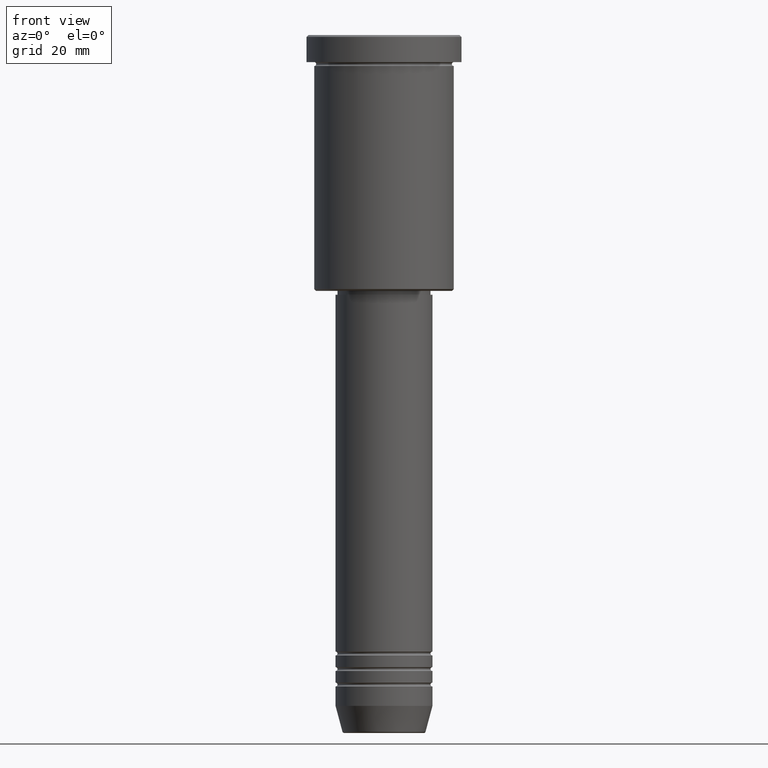
[diagram: clean part render]
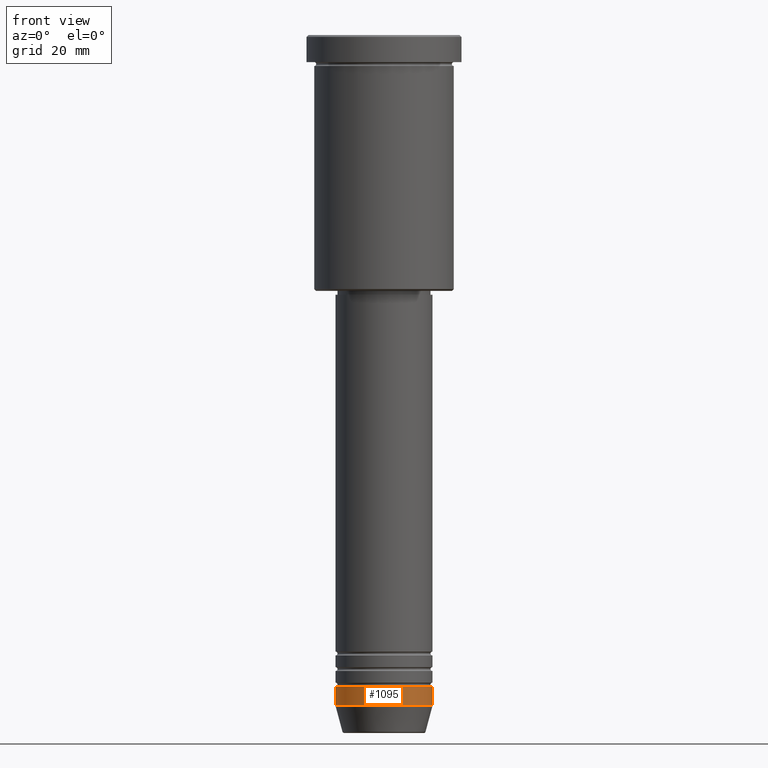
[diagram: same view with one face highlighted and labeled with its STEP entity id]
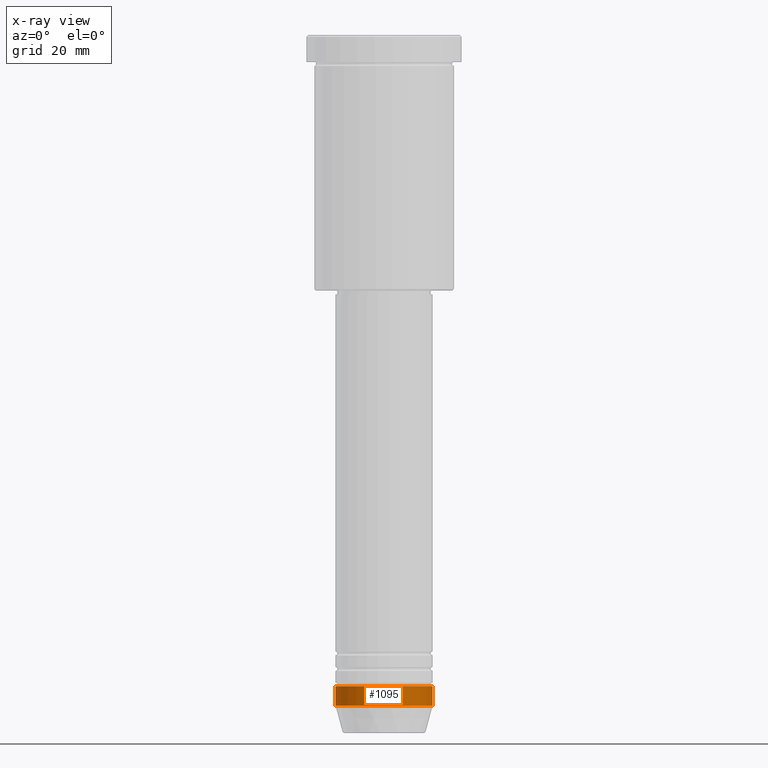
[diagram: x-ray of the same camera — body ghosted, the highlighted face saturated]
A machine part, front view. The second image highlights one B-rep face of the part: STEP entity #1095.
The next image is the same camera in x-ray: the body ghosted, the highlighted face saturated — about 0% of this face is hidden behind the body in this view.
In plain terms, the highlighted cylindrical surface (partial cylindrical patch) has radius 12.5 mm, axis along (-0, -0, 1).
Its self-contained STEP definition (entity closure, byte-faithful):
#12 = CARTESIAN_POINT ( 'NONE',  ( -12.50000000000000000, 1.530808498934191521E-15, 0.000000000000000000 ) ) ;
#25 = VERTEX_POINT ( 'NONE', #98 ) ;
#37 = AXIS2_PLACEMENT_3D ( 'NONE', #1040, #776, #418 ) ;
#50 = CYLINDRICAL_SURFACE ( 'NONE', #37, 12.50000000000000000 ) ;
#89 = VERTEX_POINT ( 'NONE', #505 ) ;
#91 = VECTOR ( 'NONE', #816, 1000.000000000000000 ) ;
#94 = EDGE_CURVE ( 'NONE', #1149, #89, #490, .T. ) ;
#98 = CARTESIAN_POINT ( 'NONE',  ( 12.50000000000000000, 0.000000000000000000, -173.0000000000000284 ) ) ;
#166 = CARTESIAN_POINT ( 'NONE',  ( -12.50000000000000000, 1.530808498934191521E-15, -173.0000000000000284 ) ) ;
#190 = CIRCLE ( 'NONE', #1140, 12.50000000000000000 ) ;
#230 = DIRECTION ( 'NONE',  ( 1.000000000000000000, 0.000000000000000000, 0.000000000000000000 ) ) ;
#263 = AXIS2_PLACEMENT_3D ( 'NONE', #485, #774, #230 ) ;
#295 = CARTESIAN_POINT ( 'NONE',  ( 0.000000000000000000, 0.000000000000000000, -173.0000000000000284 ) ) ;
#314 = VERTEX_POINT ( 'NONE', #166 ) ;
#320 = EDGE_CURVE ( 'NONE', #25, #89, #1154, .T. ) ;
#339 = CARTESIAN_POINT ( 'NONE',  ( 12.50000000000000000, 0.000000000000000000, 0.000000000000000000 ) ) ;
#399 = ORIENTED_EDGE ( 'NONE', *, *, #504, .T. ) ;
#416 = EDGE_CURVE ( 'NONE', #314, #1149, #469, .T. ) ;
#418 = DIRECTION ( 'NONE',  ( 1.000000000000000000, 0.000000000000000000, 0.000000000000000000 ) ) ;
#469 = LINE ( 'NONE', #12, #1180 ) ;
#474 = DIRECTION ( 'NONE',  ( -0.000000000000000000, -0.000000000000000000, 1.000000000000000000 ) ) ;
#485 = CARTESIAN_POINT ( 'NONE',  ( 0.000000000000000000, 0.000000000000000000, -168.0000000000000000 ) ) ;
#490 = CIRCLE ( 'NONE', #263, 12.50000000000000000 ) ;
#504 = EDGE_CURVE ( 'NONE', #314, #25, #190, .T. ) ;
#505 = CARTESIAN_POINT ( 'NONE',  ( 12.50000000000000000, 0.000000000000000000, -168.0000000000000000 ) ) ;
#670 = ORIENTED_EDGE ( 'NONE', *, *, #320, .T. ) ;
#711 = EDGE_LOOP ( 'NONE', ( #738, #399, #670, #729 ) ) ;
#729 = ORIENTED_EDGE ( 'NONE', *, *, #94, .F. ) ;
#738 = ORIENTED_EDGE ( 'NONE', *, *, #416, .F. ) ;
#774 = DIRECTION ( 'NONE',  ( -0.000000000000000000, -0.000000000000000000, 1.000000000000000000 ) ) ;
#776 = DIRECTION ( 'NONE',  ( -0.000000000000000000, -0.000000000000000000, 1.000000000000000000 ) ) ;
#816 = DIRECTION ( 'NONE',  ( -0.000000000000000000, -0.000000000000000000, 1.000000000000000000 ) ) ;
#829 = DIRECTION ( 'NONE',  ( -0.000000000000000000, -0.000000000000000000, 1.000000000000000000 ) ) ;
#871 = FACE_OUTER_BOUND ( 'NONE', #711, .T. ) ;
#1020 = DIRECTION ( 'NONE',  ( 1.000000000000000000, 0.000000000000000000, 0.000000000000000000 ) ) ;
#1040 = CARTESIAN_POINT ( 'NONE',  ( 0.000000000000000000, 0.000000000000000000, 0.000000000000000000 ) ) ;
#1074 = CARTESIAN_POINT ( 'NONE',  ( -12.50000000000000000, 1.530808498934191521E-15, -168.0000000000000000 ) ) ;
#1095 = ADVANCED_FACE ( 'NONE', ( #871 ), #50, .T. ) ;
#1140 = AXIS2_PLACEMENT_3D ( 'NONE', #295, #474, #1020 ) ;
#1149 = VERTEX_POINT ( 'NONE', #1074 ) ;
#1154 = LINE ( 'NONE', #339, #91 ) ;
#1180 = VECTOR ( 'NONE', #829, 1000.000000000000000 ) ;